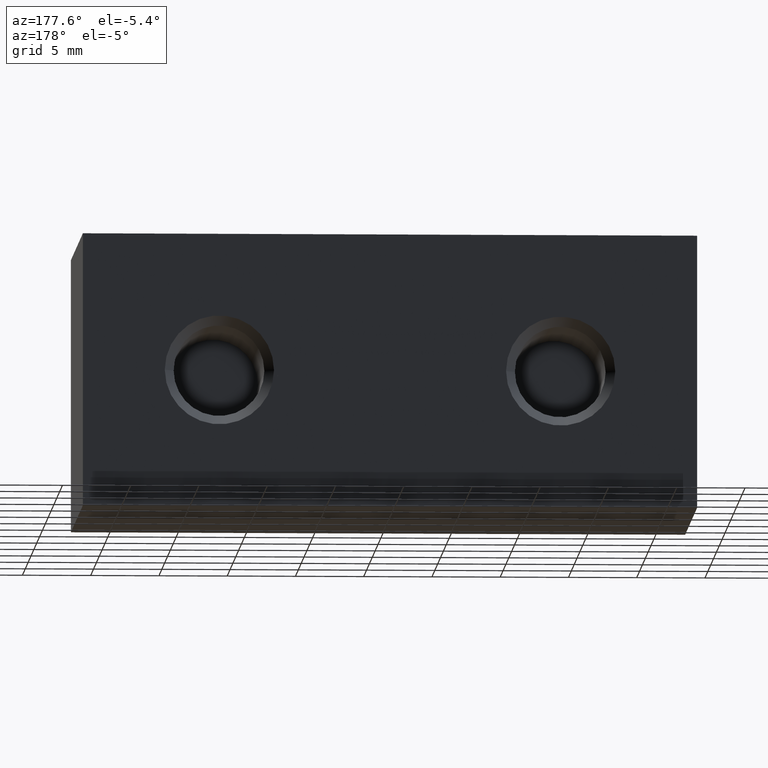
[diagram: clean part render]
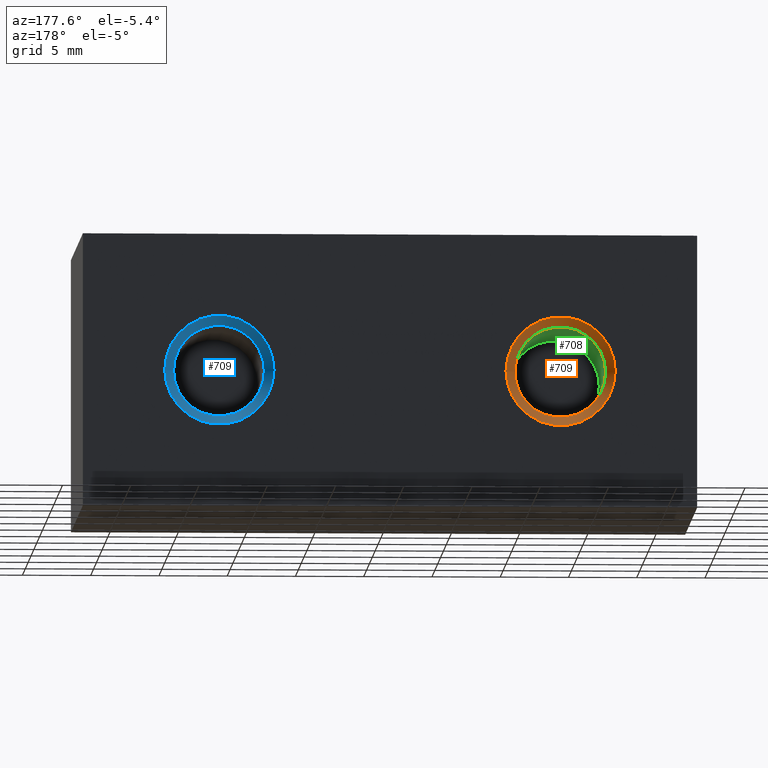
[diagram: same view with three faces highlighted in distinct colors, each labeled with its STEP entity id]
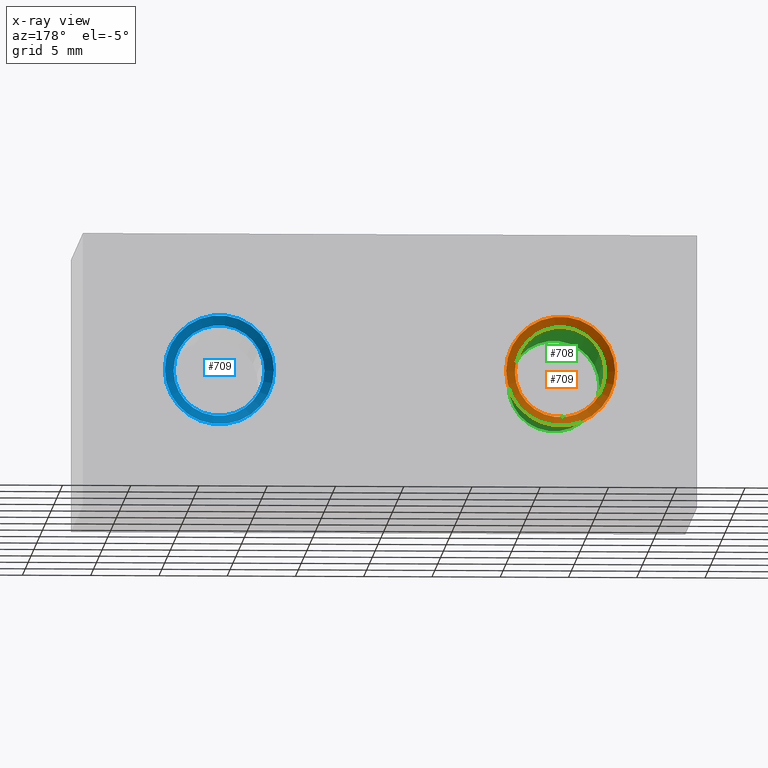
[diagram: x-ray of the same camera — body ghosted, the three highlighted faces saturated]
A machine part, auxiliary view with three faces highlighted in distinct colors.
The next image is the same camera in x-ray (body ghosted, the three faces saturated) — at least one of them is partly hidden behind the body in this view.
Their STEP definitions:

[orange] entity #709 — the highlighted conical surface has half-angle 45 deg.
#29=CONICAL_SURFACE('',#844,3.66175,0.785398163397447);
#115=FACE_OUTER_BOUND('',#155,.T.);
#155=EDGE_LOOP('',(#638,#639,#640,#641,#642,#643));
#209=LINE('',#1292,#259);
#259=VECTOR('',#1046,3.66175);
#293=CIRCLE('',#842,3.3235);
#294=CIRCLE('',#843,3.3235);
#295=CIRCLE('',#845,4.);
#296=CIRCLE('',#846,4.);
#363=VERTEX_POINT('',#1285);
#364=VERTEX_POINT('',#1287);
#365=VERTEX_POINT('',#1291);
#366=VERTEX_POINT('',#1293);
#461=EDGE_CURVE('',#363,#364,#293,.T.);
#462=EDGE_CURVE('',#364,#363,#294,.T.);
#463=EDGE_CURVE('',#363,#365,#209,.T.);
#464=EDGE_CURVE('',#366,#365,#295,.T.);
#465=EDGE_CURVE('',#365,#366,#296,.T.);
#638=ORIENTED_EDGE('',*,*,#462,.F.);
#639=ORIENTED_EDGE('',*,*,#461,.F.);
#640=ORIENTED_EDGE('',*,*,#463,.T.);
#641=ORIENTED_EDGE('',*,*,#464,.F.);
#642=ORIENTED_EDGE('',*,*,#465,.F.);
#643=ORIENTED_EDGE('',*,*,#463,.F.);
#709=ADVANCED_FACE('',(#115),#29,.F.);
#842=AXIS2_PLACEMENT_3D('',#1288,#1040,#1041);
#843=AXIS2_PLACEMENT_3D('',#1289,#1042,#1043);
#844=AXIS2_PLACEMENT_3D('',#1290,#1044,#1045);
#845=AXIS2_PLACEMENT_3D('',#1294,#1047,#1048);
#846=AXIS2_PLACEMENT_3D('',#1295,#1049,#1050);
#1040=DIRECTION('center_axis',(1.,0.,0.));
#1041=DIRECTION('ref_axis',(0.,0.,-1.));
#1042=DIRECTION('center_axis',(1.,0.,0.));
#1043=DIRECTION('ref_axis',(0.,0.,-1.));
#1044=DIRECTION('center_axis',(1.,0.,0.));
#1045=DIRECTION('ref_axis',(0.,1.,0.));
#1046=DIRECTION('',(0.707106781186549,-0.707106781186546,-8.65956056235492E-17));
#1047=DIRECTION('center_axis',(-1.,0.,0.));
#1048=DIRECTION('ref_axis',(0.,1.,0.));
#1049=DIRECTION('center_axis',(-1.,0.,0.));
#1050=DIRECTION('ref_axis',(0.,1.,0.));
#1285=CARTESIAN_POINT('',(11.7235,-3.3235,-4.07011363696623E-16));
#1287=CARTESIAN_POINT('',(11.7235,3.3235,0.));
#1288=CARTESIAN_POINT('Origin',(11.7235,0.,0.));
#1289=CARTESIAN_POINT('Origin',(11.7235,0.,0.));
#1290=CARTESIAN_POINT('Origin',(12.06175,0.,0.));
#1291=CARTESIAN_POINT('',(12.4,-4.,-4.89858719658941E-16));
#1292=CARTESIAN_POINT('',(12.06175,-3.66175,-4.48435041677782E-16));
#1293=CARTESIAN_POINT('',(12.4,4.,0.));
#1294=CARTESIAN_POINT('Origin',(12.4,0.,0.));
#1295=CARTESIAN_POINT('Origin',(12.4,0.,0.));

[blue] entity #709 — the highlighted conical surface has half-angle 45 deg.
#29=CONICAL_SURFACE('',#844,3.66175,0.785398163397447);
#115=FACE_OUTER_BOUND('',#155,.T.);
#155=EDGE_LOOP('',(#638,#639,#640,#641,#642,#643));
#209=LINE('',#1292,#259);
#259=VECTOR('',#1046,3.66175);
#293=CIRCLE('',#842,3.3235);
#294=CIRCLE('',#843,3.3235);
#295=CIRCLE('',#845,4.);
#296=CIRCLE('',#846,4.);
#363=VERTEX_POINT('',#1285);
#364=VERTEX_POINT('',#1287);
#365=VERTEX_POINT('',#1291);
#366=VERTEX_POINT('',#1293);
#461=EDGE_CURVE('',#363,#364,#293,.T.);
#462=EDGE_CURVE('',#364,#363,#294,.T.);
#463=EDGE_CURVE('',#363,#365,#209,.T.);
#464=EDGE_CURVE('',#366,#365,#295,.T.);
#465=EDGE_CURVE('',#365,#366,#296,.T.);
#638=ORIENTED_EDGE('',*,*,#462,.F.);
#639=ORIENTED_EDGE('',*,*,#461,.F.);
#640=ORIENTED_EDGE('',*,*,#463,.T.);
#641=ORIENTED_EDGE('',*,*,#464,.F.);
#642=ORIENTED_EDGE('',*,*,#465,.F.);
#643=ORIENTED_EDGE('',*,*,#463,.F.);
#709=ADVANCED_FACE('',(#115),#29,.F.);
#842=AXIS2_PLACEMENT_3D('',#1288,#1040,#1041);
#843=AXIS2_PLACEMENT_3D('',#1289,#1042,#1043);
#844=AXIS2_PLACEMENT_3D('',#1290,#1044,#1045);
#845=AXIS2_PLACEMENT_3D('',#1294,#1047,#1048);
#846=AXIS2_PLACEMENT_3D('',#1295,#1049,#1050);
#1040=DIRECTION('center_axis',(1.,0.,0.));
#1041=DIRECTION('ref_axis',(0.,0.,-1.));
#1042=DIRECTION('center_axis',(1.,0.,0.));
#1043=DIRECTION('ref_axis',(0.,0.,-1.));
#1044=DIRECTION('center_axis',(1.,0.,0.));
#1045=DIRECTION('ref_axis',(0.,1.,0.));
#1046=DIRECTION('',(0.707106781186549,-0.707106781186546,-8.65956056235492E-17));
#1047=DIRECTION('center_axis',(-1.,0.,0.));
#1048=DIRECTION('ref_axis',(0.,1.,0.));
#1049=DIRECTION('center_axis',(-1.,0.,0.));
#1050=DIRECTION('ref_axis',(0.,1.,0.));
#1285=CARTESIAN_POINT('',(11.7235,-3.3235,-4.07011363696623E-16));
#1287=CARTESIAN_POINT('',(11.7235,3.3235,0.));
#1288=CARTESIAN_POINT('Origin',(11.7235,0.,0.));
#1289=CARTESIAN_POINT('Origin',(11.7235,0.,0.));
#1290=CARTESIAN_POINT('Origin',(12.06175,0.,0.));
#1291=CARTESIAN_POINT('',(12.4,-4.,-4.89858719658941E-16));
#1292=CARTESIAN_POINT('',(12.06175,-3.66175,-4.48435041677782E-16));
#1293=CARTESIAN_POINT('',(12.4,4.,0.));
#1294=CARTESIAN_POINT('Origin',(12.4,0.,0.));
#1295=CARTESIAN_POINT('Origin',(12.4,0.,0.));

[green] entity #708 — the highlighted cylindrical surface (bore or boss wall) has radius 3.3235 mm, axis along (0, 1, 0).
#114=FACE_OUTER_BOUND('',#154,.T.);
#154=EDGE_LOOP('',(#632,#633,#634,#635,#636,#637));
#208=LINE('',#1286,#258);
#258=VECTOR('',#1039,3.3235);
#291=CIRCLE('',#839,3.3235);
#292=CIRCLE('',#840,3.3235);
#293=CIRCLE('',#842,3.3235);
#294=CIRCLE('',#843,3.3235);
#361=VERTEX_POINT('',#1279);
#362=VERTEX_POINT('',#1281);
#363=VERTEX_POINT('',#1285);
#364=VERTEX_POINT('',#1287);
#458=EDGE_CURVE('',#361,#362,#291,.T.);
#459=EDGE_CURVE('',#362,#361,#292,.T.);
#460=EDGE_CURVE('',#361,#363,#208,.T.);
#461=EDGE_CURVE('',#363,#364,#293,.T.);
#462=EDGE_CURVE('',#364,#363,#294,.T.);
#632=ORIENTED_EDGE('',*,*,#459,.F.);
#633=ORIENTED_EDGE('',*,*,#458,.F.);
#634=ORIENTED_EDGE('',*,*,#460,.T.);
#635=ORIENTED_EDGE('',*,*,#461,.T.);
#636=ORIENTED_EDGE('',*,*,#462,.T.);
#637=ORIENTED_EDGE('',*,*,#460,.F.);
#675=CYLINDRICAL_SURFACE('',#841,3.3235);
#708=ADVANCED_FACE('',(#114),#675,.F.);
#839=AXIS2_PLACEMENT_3D('',#1282,#1033,#1034);
#840=AXIS2_PLACEMENT_3D('',#1283,#1035,#1036);
#841=AXIS2_PLACEMENT_3D('',#1284,#1037,#1038);
#842=AXIS2_PLACEMENT_3D('',#1288,#1040,#1041);
#843=AXIS2_PLACEMENT_3D('',#1289,#1042,#1043);
#1033=DIRECTION('center_axis',(1.,0.,0.));
#1034=DIRECTION('ref_axis',(0.,0.,-1.));
#1035=DIRECTION('center_axis',(1.,0.,0.));
#1036=DIRECTION('ref_axis',(0.,0.,-1.));
#1037=DIRECTION('center_axis',(1.,0.,0.));
#1038=DIRECTION('ref_axis',(0.,1.,0.));
#1039=DIRECTION('',(1.,0.,0.));
#1040=DIRECTION('center_axis',(1.,0.,0.));
#1041=DIRECTION('ref_axis',(0.,0.,-1.));
#1042=DIRECTION('center_axis',(1.,0.,0.));
#1043=DIRECTION('ref_axis',(0.,0.,-1.));
#1279=CARTESIAN_POINT('',(0.6765,-3.3235,-4.07011363696623E-16));
#1281=CARTESIAN_POINT('',(0.6765,3.3235,0.));
#1282=CARTESIAN_POINT('Origin',(0.6765,0.,0.));
#1283=CARTESIAN_POINT('Origin',(0.6765,0.,0.));
#1284=CARTESIAN_POINT('Origin',(6.2,0.,0.));
#1285=CARTESIAN_POINT('',(11.7235,-3.3235,-4.07011363696623E-16));
#1286=CARTESIAN_POINT('',(6.2,-3.3235,-4.07011363696623E-16));
#1287=CARTESIAN_POINT('',(11.7235,3.3235,0.));
#1288=CARTESIAN_POINT('Origin',(11.7235,0.,0.));
#1289=CARTESIAN_POINT('Origin',(11.7235,0.,0.));